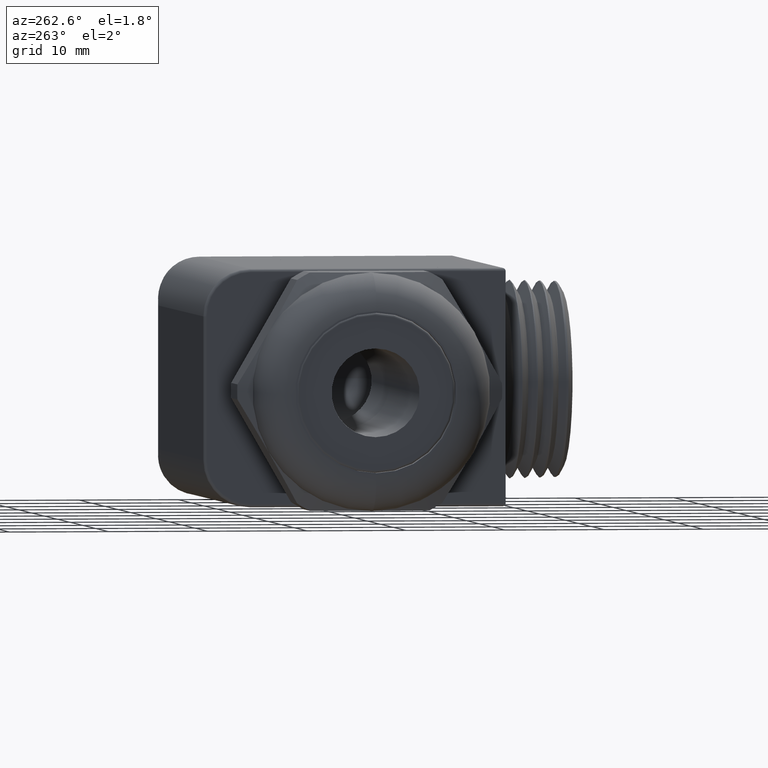
[diagram: clean part render]
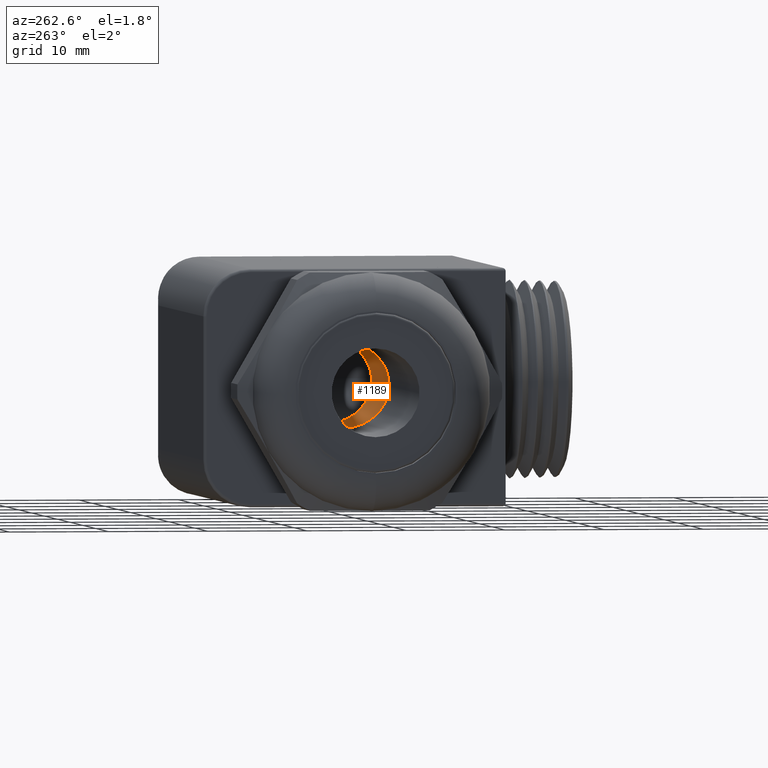
[diagram: same view with one face highlighted and labeled with its STEP entity id]
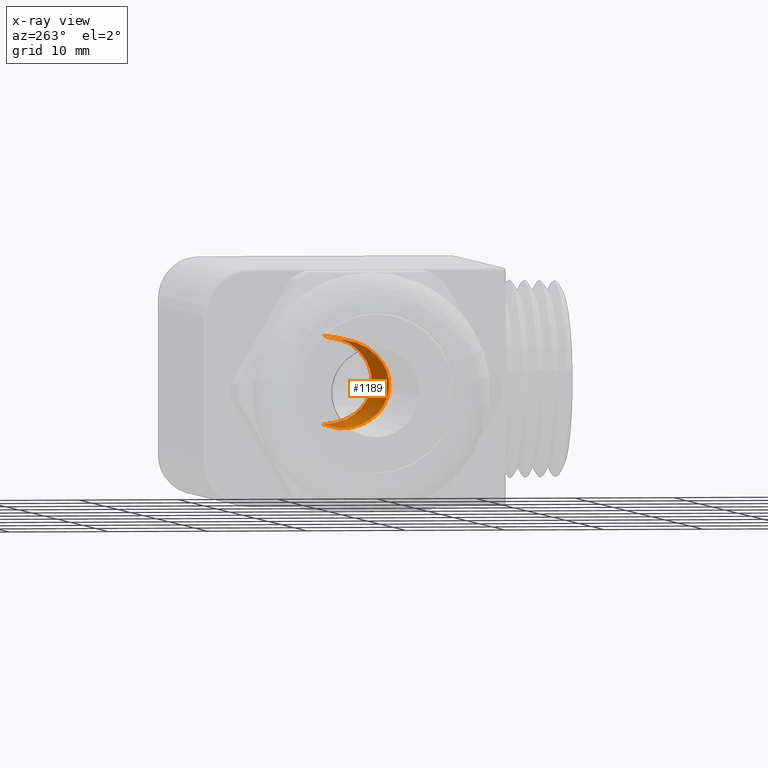
[diagram: x-ray of the same camera — body ghosted, the highlighted face saturated]
A machine part, auxiliary view. The second image highlights one B-rep face of the part: STEP entity #1189.
The next image is the same camera in x-ray: the body ghosted, the highlighted face saturated — about 13% of this face is hidden behind the body in this view.
In plain terms, the highlighted cylindrical surface (partial cylindrical patch) has radius 4.445 mm, axis along (-1, 0, 0).
Its self-contained STEP definition (entity closure, byte-faithful):
#1113 = VERTEX_POINT ( 'NONE', #3428 ) ;
#1118 = ORIENTED_EDGE ( 'NONE', *, *, #1119, .F. ) ;
#1119 = EDGE_CURVE ( 'NONE', #1113, #1196, #3533, .T. ) ;
#1120 = ORIENTED_EDGE ( 'NONE', *, *, #1121, .F. ) ;
#1121 = EDGE_CURVE ( 'NONE', #1384, #1113, #3528, .T. ) ;
#1158 = EDGE_LOOP ( 'NONE', ( #1190, #1194, #1118, #1120, #1382, #1392, #1385 ) ) ;
#1189 = ADVANCED_FACE ( 'NONE', ( #3697 ), #3696, .F. ) ;
#1190 = ORIENTED_EDGE ( 'NONE', *, *, #1191, .T. ) ;
#1191 = EDGE_CURVE ( 'NONE', #1192, #1193, #3689, .T. ) ;
#1192 = VERTEX_POINT ( 'NONE', #3691 ) ;
#1193 = VERTEX_POINT ( 'NONE', #3690 ) ;
#1194 = ORIENTED_EDGE ( 'NONE', *, *, #1195, .T. ) ;
#1195 = EDGE_CURVE ( 'NONE', #1193, #1196, #3636, .T. ) ;
#1196 = VERTEX_POINT ( 'NONE', #3632 ) ;
#1381 = EDGE_CURVE ( 'NONE', #1383, #1384, #4036, .T. ) ;
#1382 = ORIENTED_EDGE ( 'NONE', *, *, #1381, .F. ) ;
#1383 = VERTEX_POINT ( 'NONE', #4032 ) ;
#1384 = VERTEX_POINT ( 'NONE', #4031 ) ;
#1385 = ORIENTED_EDGE ( 'NONE', *, *, #1386, .T. ) ;
#1386 = EDGE_CURVE ( 'NONE', #1394, #1192, #4030, .T. ) ;
#1392 = ORIENTED_EDGE ( 'NONE', *, *, #1393, .F. ) ;
#1393 = EDGE_CURVE ( 'NONE', #1394, #1383, #4124, .T. ) ;
#1394 = VERTEX_POINT ( 'NONE', #4120 ) ;
#2754 = CARTESIAN_POINT ( 'NONE',  ( 0.4639999999999950800, -1.169036308179156100E-017, -0.1750000000000001300 ) ) ;
#2755 = CARTESIAN_POINT ( 'NONE',  ( 0.1139999999999914000, -0.3500000000000000300, -0.1749999999999999300 ) ) ;
#3428 = CARTESIAN_POINT ( 'NONE',  ( 0.4639999999999950800, -1.169036308179156100E-017, -0.1750000000000001300 ) ) ;
#3525 = CARTESIAN_POINT ( 'NONE',  ( 0.1139999999999914000, -0.3500000000000000300, 0.1750000000000000400 ) ) ;
#3526 = CARTESIAN_POINT ( 'NONE',  ( 0.4639999999999950800, -1.169036308179156100E-017, 0.1749999999999999900 ) ) ;
#3528 =( BOUNDED_CURVE ( )  B_SPLINE_CURVE ( 3, ( #3526, #3525, #2755, #2754 ),
 .UNSPECIFIED., .F., .T. ) 
 B_SPLINE_CURVE_WITH_KNOTS ( ( 4, 4 ),
 ( 4.712388980384689700, 7.853981633974482800 ),
 .UNSPECIFIED. ) 
 CURVE ( )  GEOMETRIC_REPRESENTATION_ITEM ( )  RATIONAL_B_SPLINE_CURVE ( ( 1.000000000000000000, 0.3333333333333333100, 0.3333333333333333100, 1.000000000000000000 ) ) 
 REPRESENTATION_ITEM ( '' )  );
#3530 = DIRECTION ( 'NONE',  ( 1.000000000000000000, 0.0000000000000000000, 0.0000000000000000000 ) ) ;
#3531 = VECTOR ( 'NONE', #3530, 39.37007874015748100 ) ;
#3532 = CARTESIAN_POINT ( 'NONE',  ( 1.495130114062221700, 1.222686989034449200E-017, -0.1749999999999999900 ) ) ;
#3533 = LINE ( 'NONE', #3532, #3531 ) ;
#3632 = CARTESIAN_POINT ( 'NONE',  ( 0.9679999999999952000, 0.0000000000000000000, -0.1749999999999999900 ) ) ;
#3633 = DIRECTION ( 'NONE',  ( -1.000000000000000000, 0.0000000000000000000, 0.0000000000000000000 ) ) ;
#3634 = VECTOR ( 'NONE', #3633, 39.37007874015748100 ) ;
#3635 = CARTESIAN_POINT ( 'NONE',  ( 1.495130114062221700, 2.143131898507868000E-017, -0.1749999999999999900 ) ) ;
#3636 = LINE ( 'NONE', #3635, #3634 ) ;
#3685 = CARTESIAN_POINT ( 'NONE',  ( 1.000155367231638300, 2.143131898507868000E-017, -0.1749999999999999900 ) ) ;
#3686 = CARTESIAN_POINT ( 'NONE',  ( 0.8976427406469297300, -0.1025126265847083200, -0.1749999999999999900 ) ) ;
#3687 = CARTESIAN_POINT ( 'NONE',  ( 0.8251553672316385100, -0.1749999999999999900, -0.1025126265847083500 ) ) ;
#3688 = CARTESIAN_POINT ( 'NONE',  ( 0.8251553672316384000, -0.1749999999999999300, 2.143131898507868000E-017 ) ) ;
#3689 =( BOUNDED_CURVE ( )  B_SPLINE_CURVE ( 3, ( #3688, #3687, #3686, #3685 ),
 .UNSPECIFIED., .F., .T. ) 
 B_SPLINE_CURVE_WITH_KNOTS ( ( 4, 4 ),
 ( 0.0000000000000000000, 1.570796326794896800 ),
 .UNSPECIFIED. ) 
 CURVE ( )  GEOMETRIC_REPRESENTATION_ITEM ( )  RATIONAL_B_SPLINE_CURVE ( ( 1.000000000000000000, 0.8047378541243649400, 0.8047378541243649400, 1.000000000000000000 ) ) 
 REPRESENTATION_ITEM ( '' )  );
#3690 = CARTESIAN_POINT ( 'NONE',  ( 1.000155367231638300, 2.143131898507868000E-017, -0.1749999999999999900 ) ) ;
#3691 = CARTESIAN_POINT ( 'NONE',  ( 0.8251553672316384000, -0.1749999999999999300, 2.143131898507868000E-017 ) ) ;
#3692 = DIRECTION ( 'NONE',  ( 0.0000000000000000000, 0.0000000000000000000, 1.000000000000000000 ) ) ;
#3693 = DIRECTION ( 'NONE',  ( -1.000000000000000000, 0.0000000000000000000, 0.0000000000000000000 ) ) ;
#3694 = CARTESIAN_POINT ( 'NONE',  ( 1.495130114062221700, 0.0000000000000000000, 0.0000000000000000000 ) ) ;
#3695 = AXIS2_PLACEMENT_3D ( 'NONE', #3694, #3693, #3692 ) ;
#3696 = CYLINDRICAL_SURFACE ( 'NONE', #3695, 0.1749999999999999900 ) ;
#3697 = FACE_OUTER_BOUND ( 'NONE', #1158, .T. ) ;
#4025 = CARTESIAN_POINT ( 'NONE',  ( 0.8251553672316385100, -0.1749999999999999900, 0.1025126265847083500 ) ) ;
#4026 = CARTESIAN_POINT ( 'NONE',  ( 0.8976427406469297300, -0.1025126265847083200, 0.1749999999999999900 ) ) ;
#4027 = CARTESIAN_POINT ( 'NONE',  ( 1.000155367231638300, 0.0000000000000000000, 0.1749999999999999900 ) ) ;
#4030 =( BOUNDED_CURVE ( )  B_SPLINE_CURVE ( 3, ( #4027, #4026, #4025, #4133 ),
 .UNSPECIFIED., .F., .T. ) 
 B_SPLINE_CURVE_WITH_KNOTS ( ( 4, 4 ),
 ( 4.712388980384689700, 6.283185307179586200 ),
 .UNSPECIFIED. ) 
 CURVE ( )  GEOMETRIC_REPRESENTATION_ITEM ( )  RATIONAL_B_SPLINE_CURVE ( ( 1.000000000000000000, 0.8047378541243649400, 0.8047378541243649400, 1.000000000000000000 ) ) 
 REPRESENTATION_ITEM ( '' )  );
#4031 = CARTESIAN_POINT ( 'NONE',  ( 0.4639999999999950800, -1.169036308179156100E-017, 0.1749999999999999900 ) ) ;
#4032 = CARTESIAN_POINT ( 'NONE',  ( 0.9679999999999952000, 1.222686989034449200E-017, 0.1749999999999999900 ) ) ;
#4033 = DIRECTION ( 'NONE',  ( -1.000000000000000000, 0.0000000000000000000, 0.0000000000000000000 ) ) ;
#4034 = VECTOR ( 'NONE', #4033, 39.37007874015748100 ) ;
#4035 = CARTESIAN_POINT ( 'NONE',  ( 1.495130114062221700, 1.222686989034449200E-017, 0.1749999999999999900 ) ) ;
#4036 = LINE ( 'NONE', #4035, #4034 ) ;
#4120 = CARTESIAN_POINT ( 'NONE',  ( 1.000155367231638300, 0.0000000000000000000, 0.1749999999999999900 ) ) ;
#4121 = DIRECTION ( 'NONE',  ( -1.000000000000000000, 0.0000000000000000000, 0.0000000000000000000 ) ) ;
#4122 = VECTOR ( 'NONE', #4121, 39.37007874015748100 ) ;
#4123 = CARTESIAN_POINT ( 'NONE',  ( 1.495130114062221700, 0.0000000000000000000, 0.1749999999999999900 ) ) ;
#4124 = LINE ( 'NONE', #4123, #4122 ) ;
#4133 = CARTESIAN_POINT ( 'NONE',  ( 0.8251553672316384000, -0.1749999999999999300, 2.143131898507868000E-017 ) ) ;